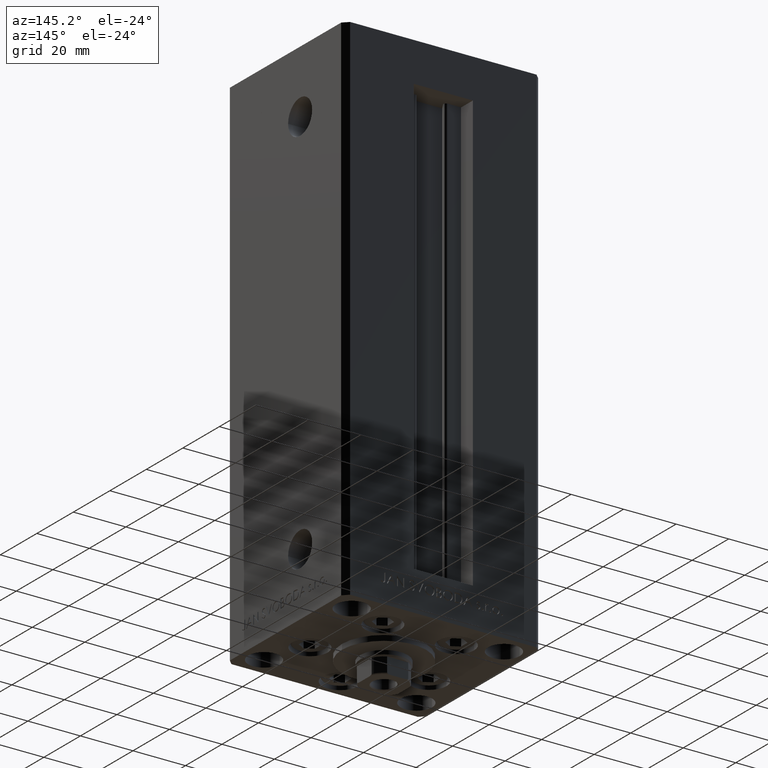
[diagram: clean part render]
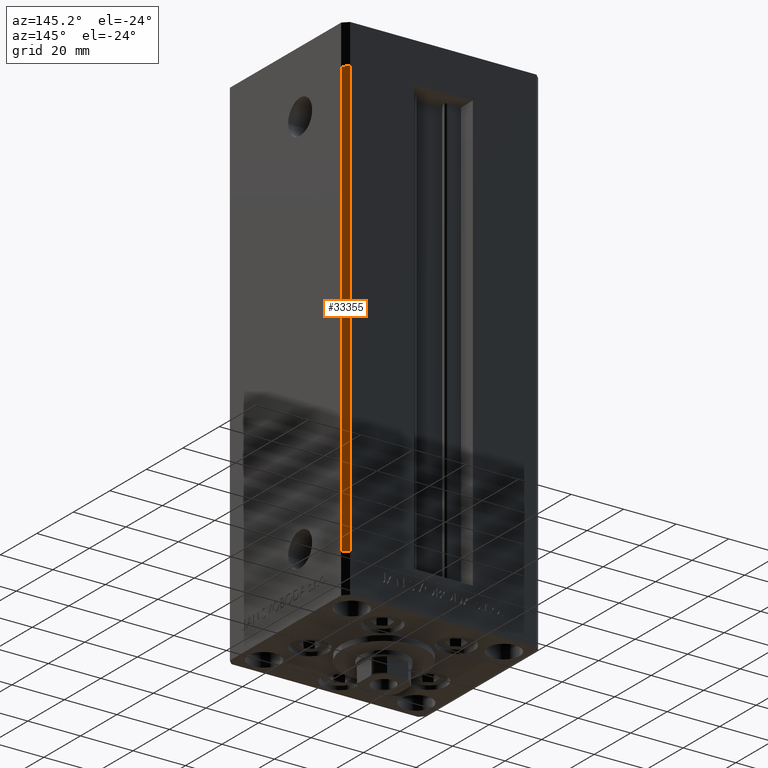
[diagram: same view with one face highlighted and labeled with its STEP entity id]
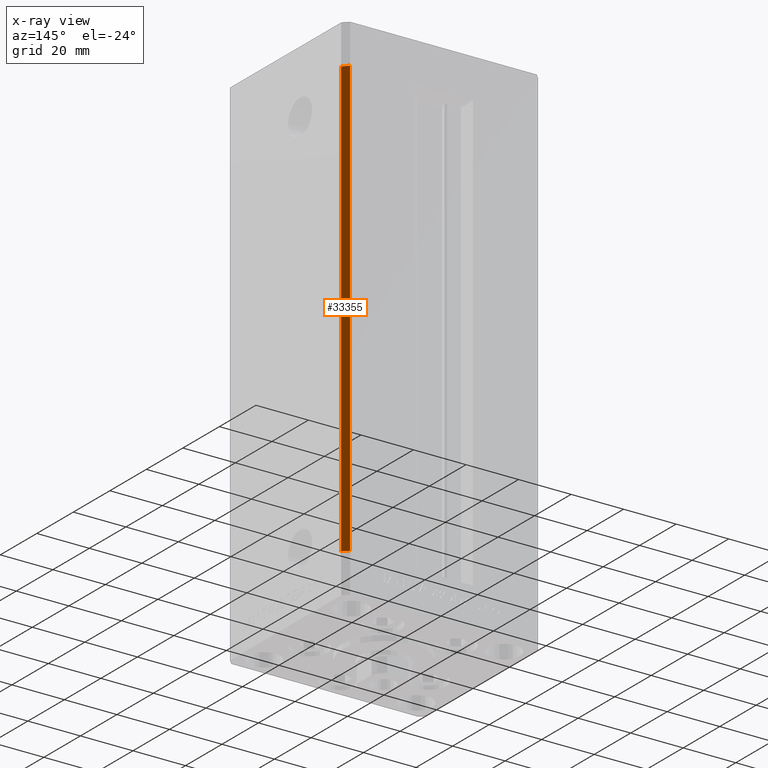
[diagram: x-ray of the same camera — body ghosted, the highlighted face saturated]
A machine part, auxiliary view. The second image highlights one B-rep face of the part: STEP entity #33355.
The next image is the same camera in x-ray: the body ghosted, the highlighted face saturated — about 0% of this face is hidden behind the body in this view.
In plain terms, the highlighted planar face has unit normal (0.7071, 0.7071, 0).
Its self-contained STEP definition (entity closure, byte-faithful):
#1502 = CARTESIAN_POINT ( 'NONE',  ( 35.50000000000000000, 32.49999999999999289, 166.0000000000000000 ) ) ;
#3557 = VECTOR ( 'NONE', #11559, 1000.000000000000000 ) ;
#3831 = CARTESIAN_POINT ( 'NONE',  ( 35.50000000000000000, 32.49999999999999289, 0.000000000000000000 ) ) ;
#5464 = PLANE ( 'NONE',  #34381 ) ;
#5735 = DIRECTION ( 'NONE',  ( -0.000000000000000000, -0.000000000000000000, -1.000000000000000000 ) ) ;
#7695 = VERTEX_POINT ( 'NONE', #44869 ) ;
#8070 = CARTESIAN_POINT ( 'NONE',  ( 37.50000000000000711, 30.50000000000000000, 166.0000000000000000 ) ) ;
#9721 = CARTESIAN_POINT ( 'NONE',  ( 35.50000000000000000, 32.49999999999999289, 166.0000000000000000 ) ) ;
#11559 = DIRECTION ( 'NONE',  ( -0.000000000000000000, -0.000000000000000000, -1.000000000000000000 ) ) ;
#11655 = EDGE_CURVE ( 'NONE', #19384, #7695, #15606, .T. ) ;
#14396 = VECTOR ( 'NONE', #5735, 1000.000000000000000 ) ;
#14575 = CARTESIAN_POINT ( 'NONE',  ( 35.50000000000000000, 32.49999999999999289, 0.000000000000000000 ) ) ;
#14799 = ORIENTED_EDGE ( 'NONE', *, *, #26489, .F. ) ;
#15606 = LINE ( 'NONE', #42035, #17353 ) ;
#17159 = CARTESIAN_POINT ( 'NONE',  ( 35.50000000000000000, 32.49999999999999289, 166.0000000000000000 ) ) ;
#17353 = VECTOR ( 'NONE', #18598, 1000.000000000000114 ) ;
#17477 = EDGE_LOOP ( 'NONE', ( #14799, #43351, #38075, #40342 ) ) ;
#18598 = DIRECTION ( 'NONE',  ( 0.7071067811865500152, -0.7071067811865451302, 0.000000000000000000 ) ) ;
#19384 = VERTEX_POINT ( 'NONE', #1502 ) ;
#19432 = EDGE_CURVE ( 'NONE', #19384, #37306, #21419, .T. ) ;
#19536 = DIRECTION ( 'NONE',  ( 0.7071067811865500152, -0.7071067811865451302, 0.000000000000000000 ) ) ;
#20418 = FACE_OUTER_BOUND ( 'NONE', #17477, .T. ) ;
#21419 = LINE ( 'NONE', #9721, #14396 ) ;
#22560 = VERTEX_POINT ( 'NONE', #27269 ) ;
#25577 = EDGE_CURVE ( 'NONE', #7695, #22560, #30739, .T. ) ;
#26489 = EDGE_CURVE ( 'NONE', #37306, #22560, #26760, .T. ) ;
#26760 = LINE ( 'NONE', #3831, #30271 ) ;
#27269 = CARTESIAN_POINT ( 'NONE',  ( 37.50000000000000711, 30.50000000000000000, 0.000000000000000000 ) ) ;
#28132 = DIRECTION ( 'NONE',  ( -0.7071067811865500152, 0.7071067811865450192, 0.000000000000000000 ) ) ;
#28615 = DIRECTION ( 'NONE',  ( 0.7071067811865450192, 0.7071067811865500152, -0.000000000000000000 ) ) ;
#30271 = VECTOR ( 'NONE', #19536, 1000.000000000000114 ) ;
#30739 = LINE ( 'NONE', #8070, #3557 ) ;
#33355 = ADVANCED_FACE ( 'NONE', ( #20418 ), #5464, .T. ) ;
#34381 = AXIS2_PLACEMENT_3D ( 'NONE', #17159, #28615, #28132 ) ;
#37306 = VERTEX_POINT ( 'NONE', #14575 ) ;
#38075 = ORIENTED_EDGE ( 'NONE', *, *, #11655, .T. ) ;
#40342 = ORIENTED_EDGE ( 'NONE', *, *, #25577, .T. ) ;
#42035 = CARTESIAN_POINT ( 'NONE',  ( 35.50000000000000000, 32.49999999999999289, 166.0000000000000000 ) ) ;
#43351 = ORIENTED_EDGE ( 'NONE', *, *, #19432, .F. ) ;
#44869 = CARTESIAN_POINT ( 'NONE',  ( 37.50000000000000711, 30.50000000000000000, 166.0000000000000000 ) ) ;